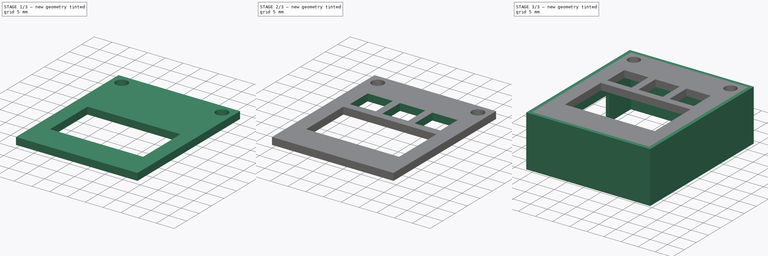
[diagram: build sequence overview — one tinted view per stage of 3, left to right]
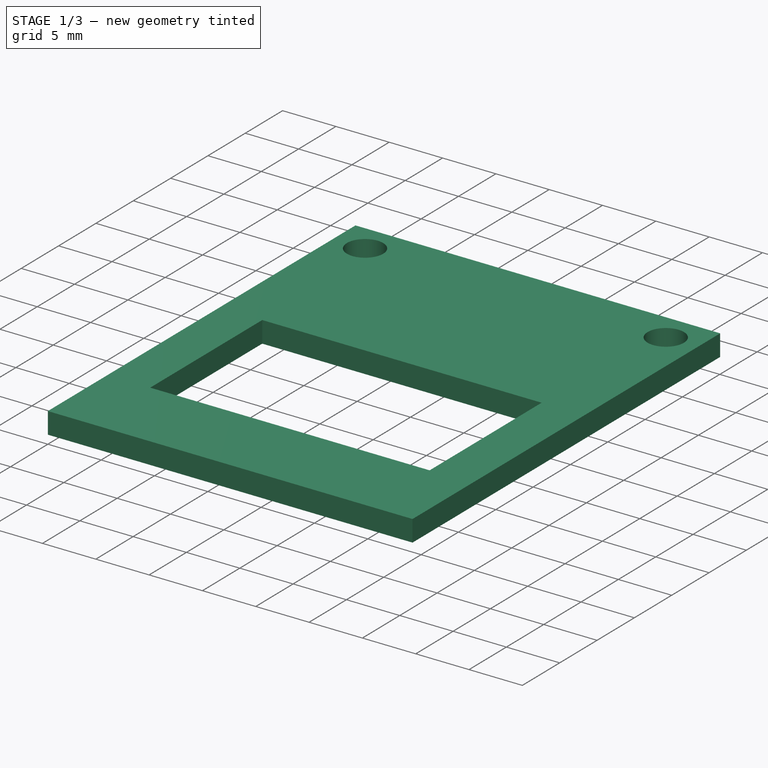
[diagram: stage 1 of 3 — iso view after this stage's code; geometry added in this stage tinted green]
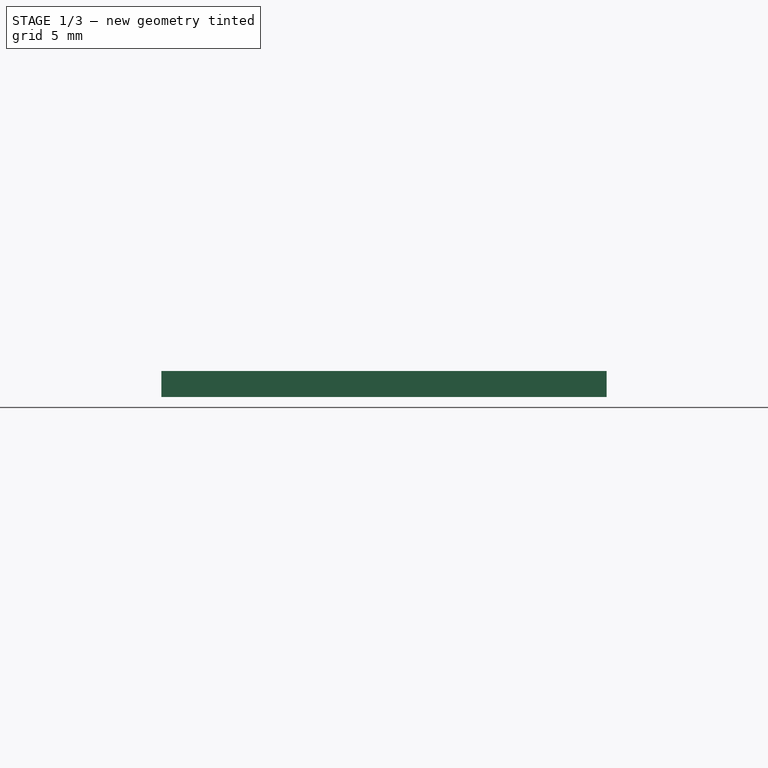
[diagram: stage 1 of 3 — front view after this stage's code; geometry added in this stage tinted green]
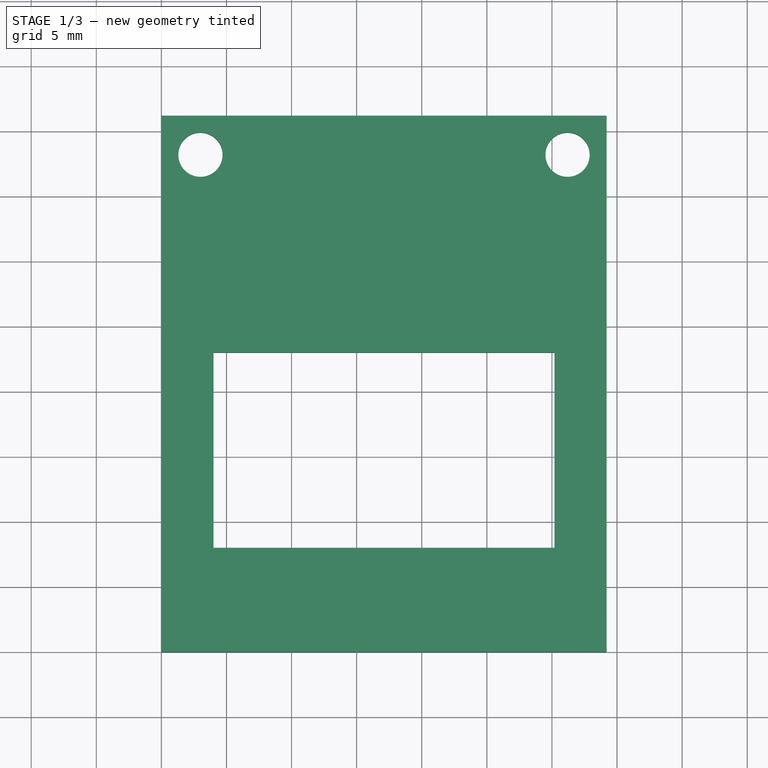
[diagram: stage 1 of 3 — top view after this stage's code; geometry added in this stage tinted green]
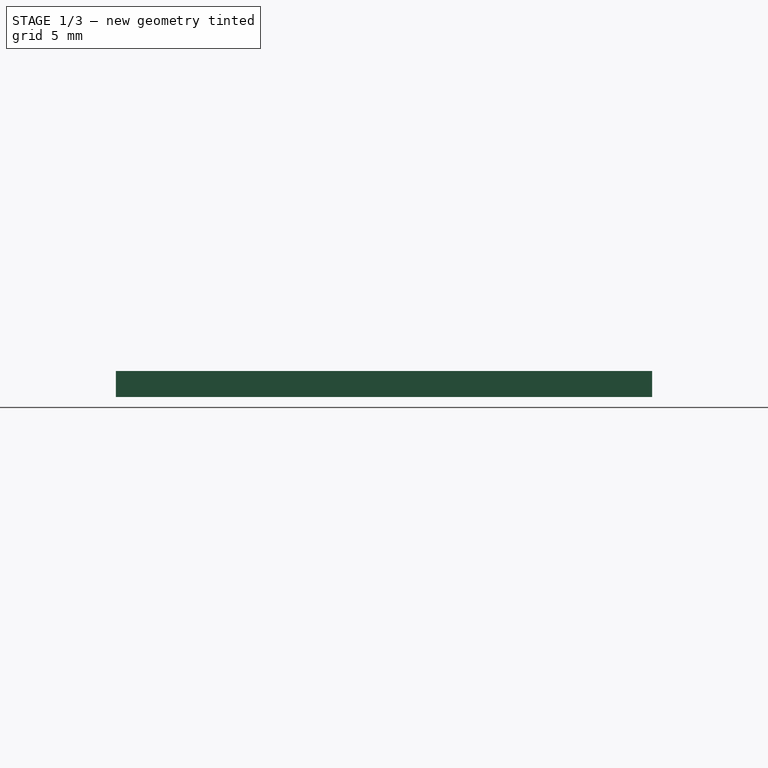
[diagram: stage 1 of 3 — right view after this stage's code; geometry added in this stage tinted green]
FCSTD DOCUMENT  (FreeCAD 0.16R6712 (Git))
Label: tapa_mini_modulo
License: All rights reserved
LicenseURL: http://en.wikipedia.org/wiki/All_rights_reserved
objects: Sketcher::SketchObject×5, PartDesign::Pocket×3, PartDesign::Pad×2
note: 15 computed .brp shape members not serialized (recipe doc carries the construction recipe); baked Part::Feature solids carry a one-line shape summary decoded from their .brp

FEATURE [Sketcher::SketchObject] Sketch
  sketch-geometry (8):
    g0: LineSegment StartX=0 StartY=41.2 StartZ=0 EndX=34.2 EndY=41.2 EndZ=0
    g1: LineSegment StartX=34.2 StartY=41.2 StartZ=0 EndX=34.2 EndY=0 EndZ=0
    g2: LineSegment StartX=34.2 StartY=0 StartZ=0 EndX=0 EndY=0 EndZ=0
    g3: LineSegment StartX=0 StartY=0 StartZ=0 EndX=0 EndY=41.2 EndZ=0
    g4: LineSegment StartX=4 StartY=23 StartZ=0 EndX=30.2 EndY=23 EndZ=0
    g5: LineSegment StartX=30.2 StartY=23 StartZ=0 EndX=30.2 EndY=8 EndZ=0
    g6: LineSegment StartX=30.2 StartY=8 StartZ=0 EndX=4 EndY=8 EndZ=0
    g7: LineSegment StartX=4 StartY=8 StartZ=0 EndX=4 EndY=23 EndZ=0
  constraints (23):
    c: Coincident(g0,g1)
    c: Coincident(g1,g2)
    c: Coincident(g2,g3)
    c: Coincident(g3,g0)
    c: Horizontal(g0)
    c: Horizontal(g2)
    c: Vertical(g1)
    c: Vertical(g3)
    c: DistanceY(g1,g1) = 41.2
    c: DistanceX(g0,g0) = 34.2
    c: Coincident(g2,g-1)
    c: Coincident(g4,g5)
    c: Coincident(g5,g6)
    c: Coincident(g6,g7)
    c: Coincident(g7,g4)
    c: Horizontal(g4)
    c: Horizontal(g6)
    c: Vertical(g5)
    c: Vertical(g7)
    c: Distance(g5,g2) = 8
    c: Distance(g4,g1) = 4
    c: Distance(g4,g3) = 4
    c: DistanceY(g7,g7) = 15
FEATURE [PartDesign::Pad] Pad
  Length = 2
  Length2 = 100
  Sketch = -> Sketch
  Type = 0
FEATURE [Sketcher::SketchObject] Sketch001
  ExternalGeometry = -> [Pad]
  Placement = pos=(0,0,2) rot=(0,0,1;0rad)
  Support = -> Pad [Face10]
  sketch-geometry (2):
    g0: Circle CenterX=3 CenterY=38.2 CenterZ=0 NormalX=0 NormalY=0 NormalZ=1 Radius=1.7
    g1: Circle CenterX=31.2 CenterY=38.2 CenterZ=0 NormalX=0 NormalY=0 NormalZ=1 Radius=1.7
  constraints (6):
    c: Radius(g1) = 1.7
    c: Equal(g0,g1)
    c: Distance(g1,g-4) = 3
    c: Distance(g1,g-3) = 3
    c: DistanceX(g-2,g0) = 3
    c: Distance(g0,g-3) = 3
FEATURE [PartDesign::Pocket] Pocket
  Length = 5
  Sketch = -> Sketch001
  Type = 0
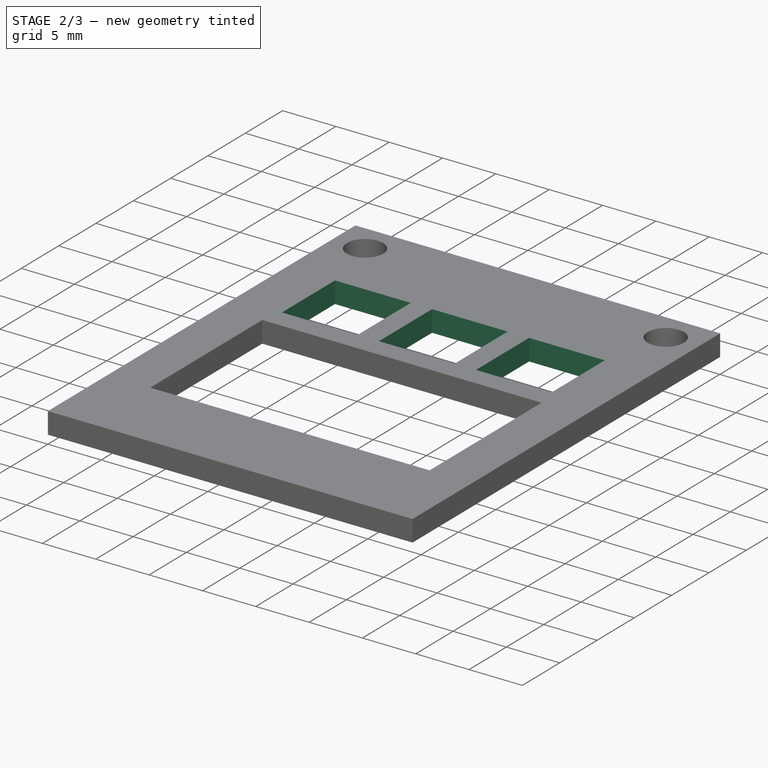
[diagram: stage 2 of 3 — iso view after this stage's code; geometry added in this stage tinted green]
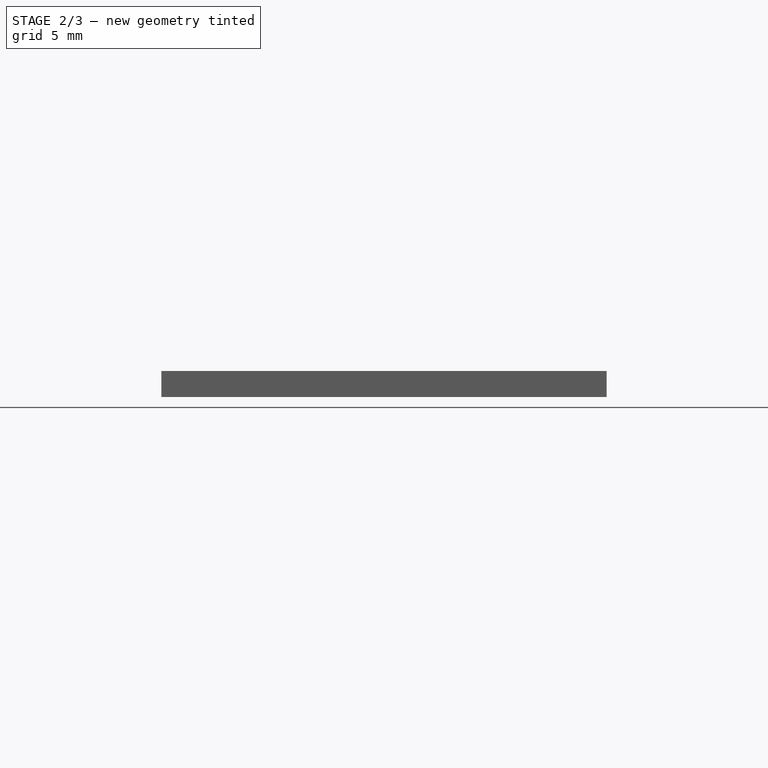
[diagram: stage 2 of 3 — front view after this stage's code; geometry added in this stage tinted green]
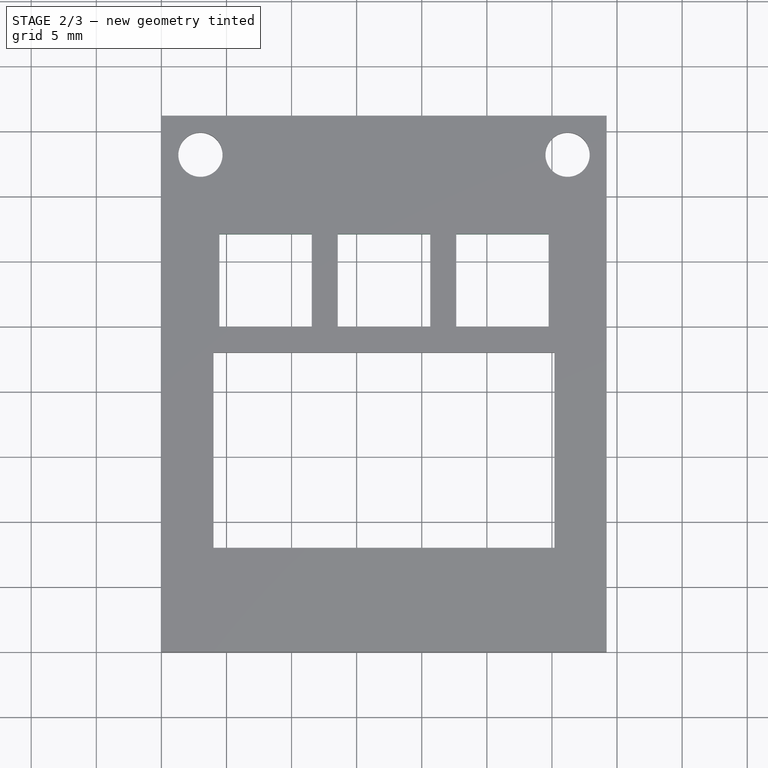
[diagram: stage 2 of 3 — top view after this stage's code; geometry added in this stage tinted green]
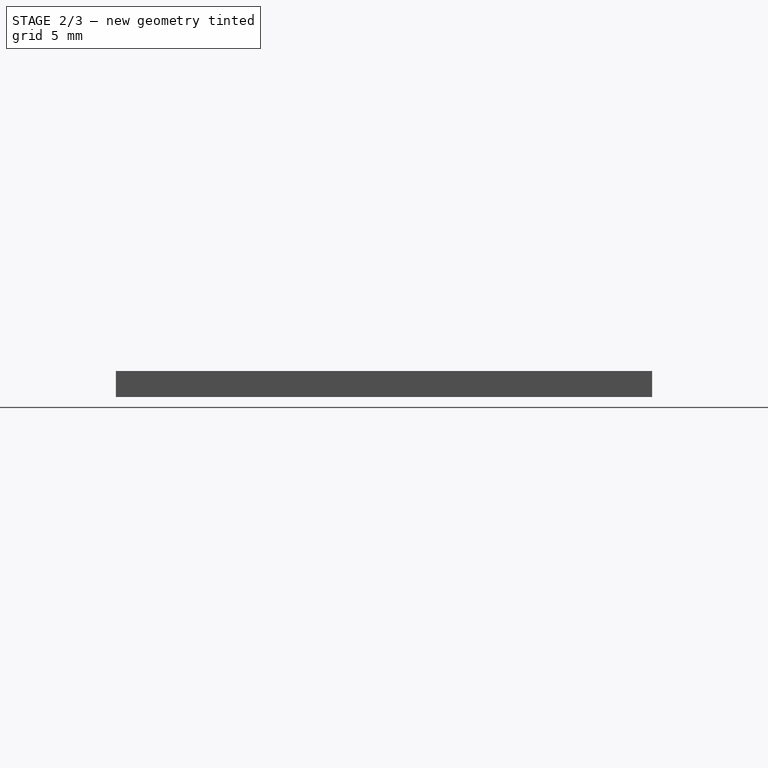
[diagram: stage 2 of 3 — right view after this stage's code; geometry added in this stage tinted green]
FEATURE [Sketcher::SketchObject] Sketch002
  ExternalGeometry = -> [Pocket]
  Placement = pos=(0,0,2) rot=(0,0,1;0rad)
  Support = -> Pocket [Face5]
  sketch-geometry (15):
    g0: LineSegment [constr] StartX=0 StartY=25 StartZ=0 EndX=34.2 EndY=25 EndZ=0
    g1: LineSegment StartX=4.45 StartY=32.1 StartZ=0 EndX=11.55 EndY=32.1 EndZ=0
    g2: LineSegment StartX=11.55 StartY=32.1 StartZ=0 EndX=11.55 EndY=25 EndZ=0
    g3: LineSegment StartX=11.55 StartY=25 StartZ=0 EndX=4.45 EndY=25 EndZ=0
    g4: LineSegment StartX=4.45 StartY=25 StartZ=0 EndX=4.45 EndY=32.1 EndZ=0
    g5: LineSegment StartX=13.55 StartY=32.1 StartZ=0 EndX=20.65 EndY=32.1 EndZ=0
    g6: LineSegment StartX=20.65 StartY=32.1 StartZ=0 EndX=20.65 EndY=25 EndZ=0
    g7: LineSegment StartX=20.65 StartY=25 StartZ=0 EndX=13.55 EndY=25 EndZ=0
    g8: LineSegment StartX=13.55 StartY=25 StartZ=0 EndX=13.55 EndY=32.1 EndZ=0
    g9: LineSegment StartX=22.65 StartY=32.1 StartZ=0 EndX=29.75 EndY=32.1 EndZ=0
    g10: LineSegment StartX=29.75 StartY=32.1 StartZ=0 EndX=29.75 EndY=25 EndZ=0
    g11: LineSegment StartX=29.75 StartY=25 StartZ=0 EndX=22.65 EndY=25 EndZ=0
    g12: LineSegment StartX=22.65 StartY=25 StartZ=0 EndX=22.65 EndY=32.1 EndZ=0
    g13: LineSegment [constr] StartX=0 StartY=32.1 StartZ=0 EndX=4.45 EndY=32.1 EndZ=0
    g14: LineSegment [constr] StartX=29.75 StartY=32.1 StartZ=0 EndX=34.2 EndY=32.1 EndZ=0
  constraints (46):
    c: Horizontal(g0)
    c: PointOnObject(g0,g-3)
    c: PointOnObject(g0,g-2)
    c: Coincident(g1,g2)
    c: Coincident(g2,g3)
    c: Coincident(g3,g4)
    c: Coincident(g4,g1)
    c: Horizontal(g1)
    c: Horizontal(g3)
    c: Vertical(g2)
    c: Vertical(g4)
    c: Coincident(g5,g6)
    c: Coincident(g6,g7)
    c: Coincident(g7,g8)
    c: Coincident(g8,g5)
    c: Horizontal(g5)
    c: Horizontal(g7)
    c: Vertical(g6)
    c: Vertical(g8)
    c: Coincident(g9,g10)
    c: Coincident(g10,g11)
    c: Coincident(g11,g12)
    c: Coincident(g12,g9)
    c: Horizontal(g9)
    c: Horizontal(g11)
    c: Vertical(g10)
    c: Vertical(g12)
    c: Equal(g9,g12)
    c: Equal(g12,g6)
    c: Equal(g6,g5)
    c: Equal(g5,g2)
    c: Equal(g2,g1)
    c: PointOnObject(g10,g0)
    c: PointOnObject(g6,g0)
    c: PointOnObject(g2,g0)
    c: DistanceY(g10,g10) = 7.1
    c: Distance(g5,g9) = 2
    c: Distance(g1,g5) = 2
    c: Distance(g-1,g0) = 25
    c: Horizontal(g13)
    c: Horizontal(g14)
    c: Equal(g13,g14)
    c: Coincident(g13,g1)
    c: PointOnObject(g13,g-2)
    c: Coincident(g14,g9)
    c: PointOnObject(g14,g-3)
FEATURE [PartDesign::Pocket] Pocket001
  Length = 5
  Sketch = -> Sketch002
  Type = 0
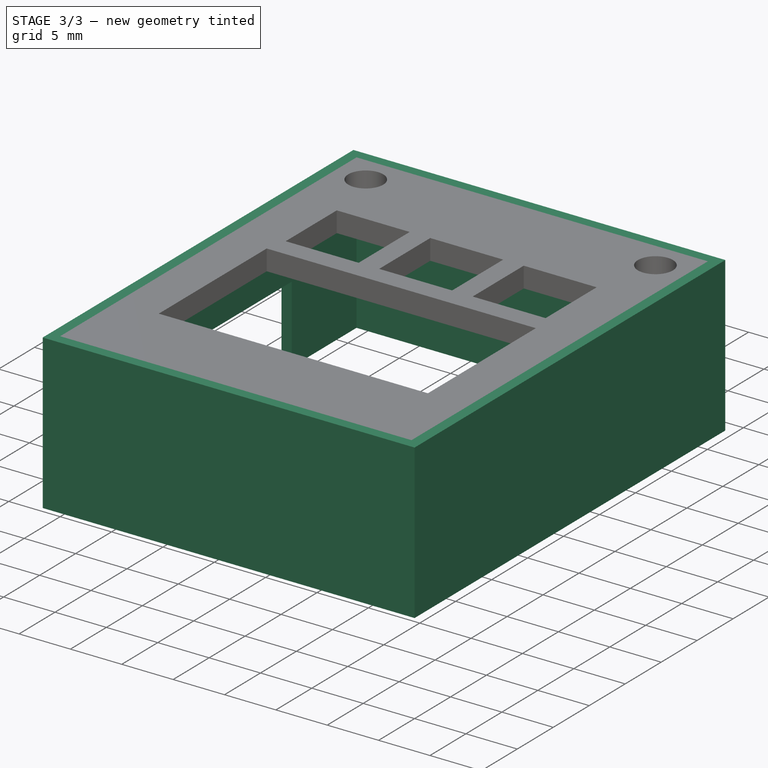
[diagram: stage 3 of 3 — iso view after this stage's code; geometry added in this stage tinted green]
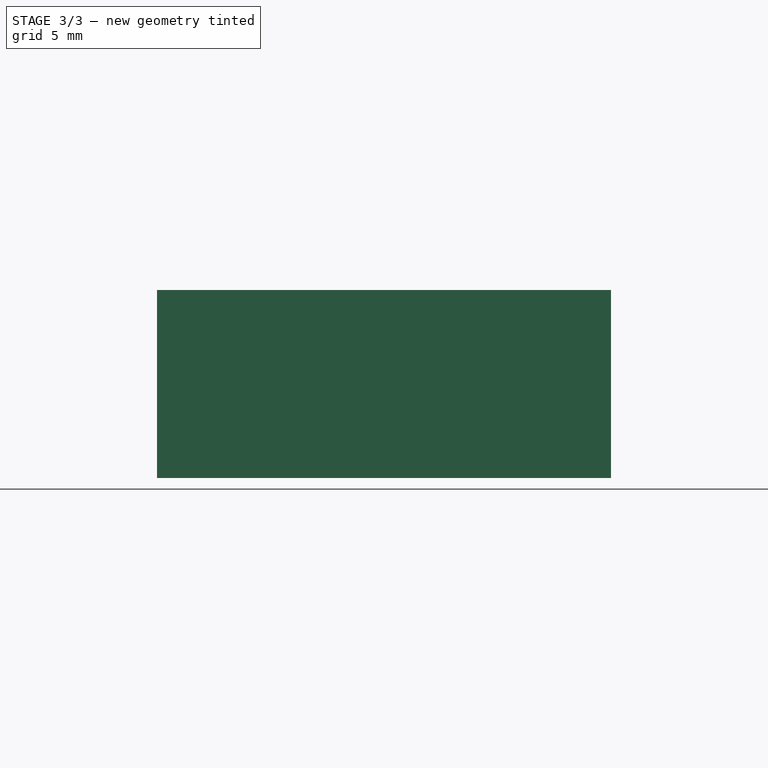
[diagram: stage 3 of 3 — front view after this stage's code; geometry added in this stage tinted green]
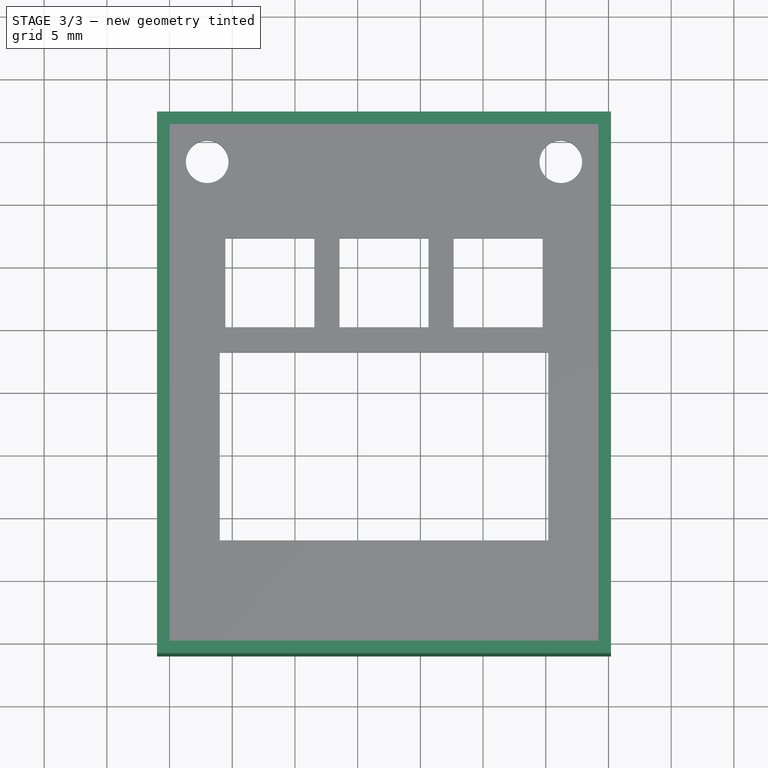
[diagram: stage 3 of 3 — top view after this stage's code; geometry added in this stage tinted green]
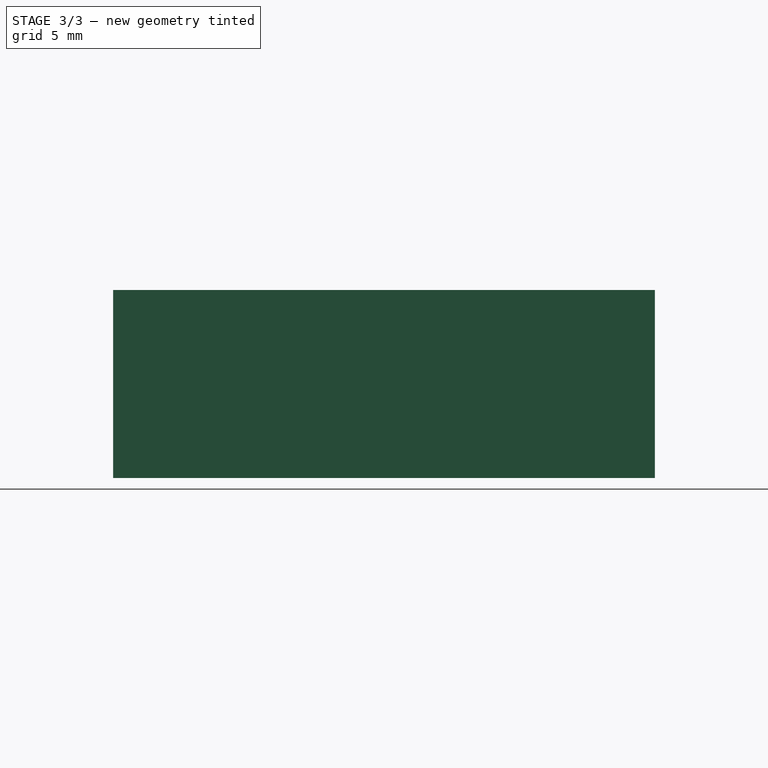
[diagram: stage 3 of 3 — right view after this stage's code; geometry added in this stage tinted green]
FEATURE [Sketcher::SketchObject] Sketch005
  ExternalGeometry = -> [Pocket001]
  Placement = pos=(0,0,2) rot=(0,0,1;0rad)
  Support = -> Pocket001 [Face5]
  sketch-geometry (8):
    g0: LineSegment StartX=0 StartY=41.2 StartZ=0 EndX=34.2 EndY=41.2 EndZ=0
    g1: LineSegment StartX=34.2 StartY=41.2 StartZ=0 EndX=34.2 EndY=0 EndZ=0
    g2: LineSegment StartX=34.2 StartY=0 StartZ=0 EndX=0 EndY=0 EndZ=0
    g3: LineSegment StartX=0 StartY=0 StartZ=0 EndX=0 EndY=41.2 EndZ=0
    g4: LineSegment StartX=-1 StartY=42.2 StartZ=0 EndX=35.2 EndY=42.2 EndZ=0
    g5: LineSegment StartX=35.2 StartY=42.2 StartZ=0 EndX=35.2 EndY=-1 EndZ=0
    g6: LineSegment StartX=35.2 StartY=-1 StartZ=0 EndX=-1 EndY=-1 EndZ=0
    g7: LineSegment StartX=-1 StartY=-1 StartZ=0 EndX=-1 EndY=42.2 EndZ=0
  constraints (22):
    c: Coincident(g0,g1)
    c: Coincident(g1,g2)
    c: Coincident(g2,g3)
    c: Coincident(g3,g0)
    c: Horizontal(g0)
    c: Horizontal(g2)
    c: Vertical(g1)
    c: Vertical(g3)
    c: Coincident(g1,g-4)
    c: Coincident(g0,g-3)
    c: Coincident(g4,g5)
    c: Coincident(g5,g6)
    c: Coincident(g6,g7)
    c: Coincident(g7,g4)
    c: Horizontal(g4)
    c: Horizontal(g6)
    c: Vertical(g5)
    c: Vertical(g7)
    c: Distance(g1,g5) = 1
    c: Distance(g0,g4) = 1
    c: Distance(g-1,g7) = 1
    c: Distance(g1,g6) = 1
FEATURE [PartDesign::Pad] Pad002
  Length = 15
  Length2 = 100
  Reversed = true
  Sketch = -> Sketch005
  Type = 0
FEATURE [Sketcher::SketchObject] Sketch006
  ExternalGeometry = -> [Pad002]
  Placement = pos=(-1,0,0) rot=(0.57735,-0.57735,-0.57735;2.0944rad)
  Support = -> Pad002 [Face27]
  sketch-geometry (5):
    g0: LineSegment StartX=-5.2 StartY=-13 StartZ=0 EndX=-32.2 EndY=-13 EndZ=0
    g1: LineSegment StartX=-32.2 StartY=-13 StartZ=0 EndX=-32.2 EndY=-5.50049 EndZ=0
    g2: LineSegment StartX=-32.2 StartY=-5.50049 StartZ=0 EndX=-10.5623 EndY=-5.50049 EndZ=0
    g3: LineSegment StartX=-10.5623 StartY=-5.50049 StartZ=0 EndX=-5.2 EndY=-10 EndZ=0
    g4: LineSegment StartX=-5.2 StartY=-10 StartZ=0 EndX=-5.2 EndY=-13 EndZ=0
  constraints (15):
    c: Horizontal(g0)
    c: Coincident(g0,g1)
    c: Vertical(g1)
    c: Coincident(g1,g2)
    c: Horizontal(g2)
    c: Coincident(g2,g3)
    c: Coincident(g3,g4)
    c: Coincident(g4,g0)
    c: Vertical(g4)
    c: PointOnObject(g0,g-3)
    c: Distance(g-3,g0) = 10
    c: Distance(g0,g0) = 27
    c: Distance(g2,g3) = 7
    c: Angle(g2,g3) = 2.44346
    c: DistanceY(g4,g4) = 3
FEATURE [PartDesign::Pocket] Pocket002
  Length = 5
  Sketch = -> Sketch006
  Type = 0
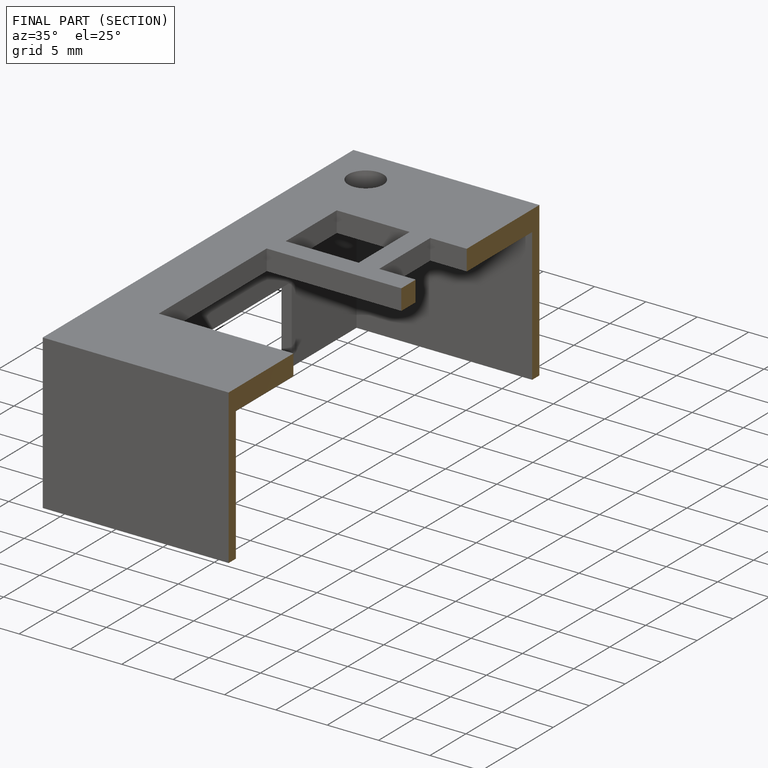
[diagram: finished part — half-section view (interior)]
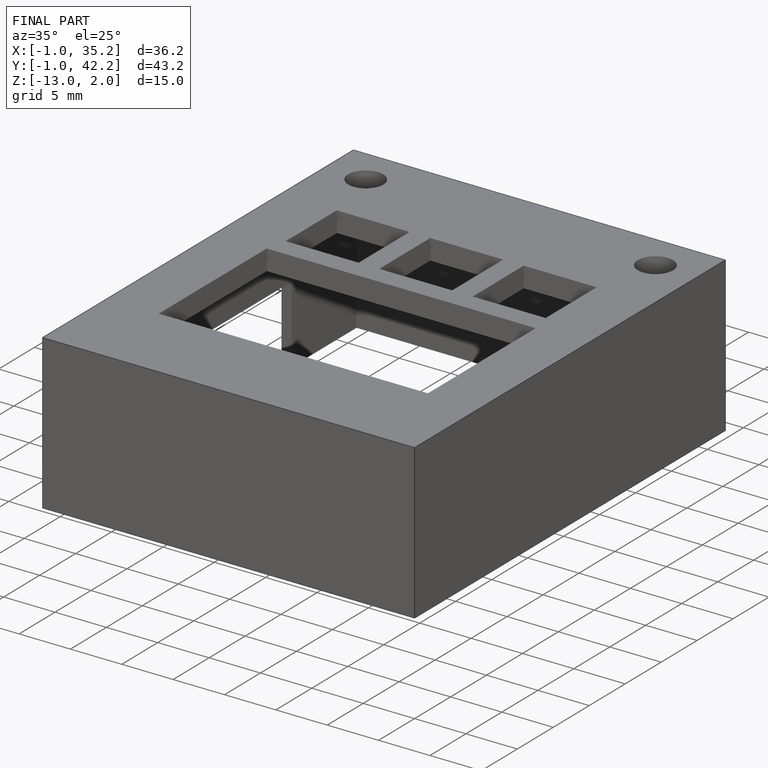
[diagram: finished part — iso view with bounding-box wireframe]
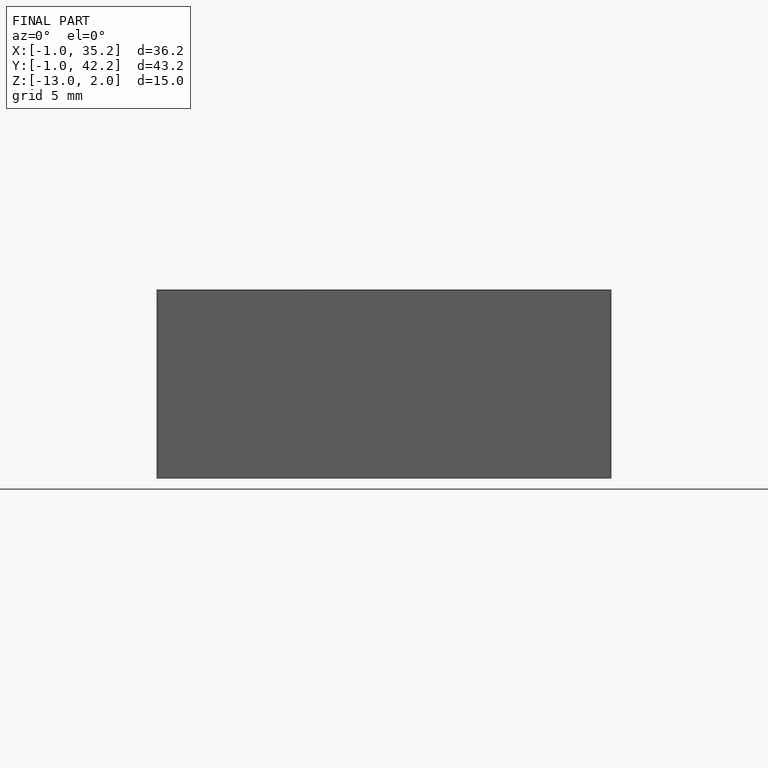
[diagram: finished part — front view with bounding-box wireframe]
